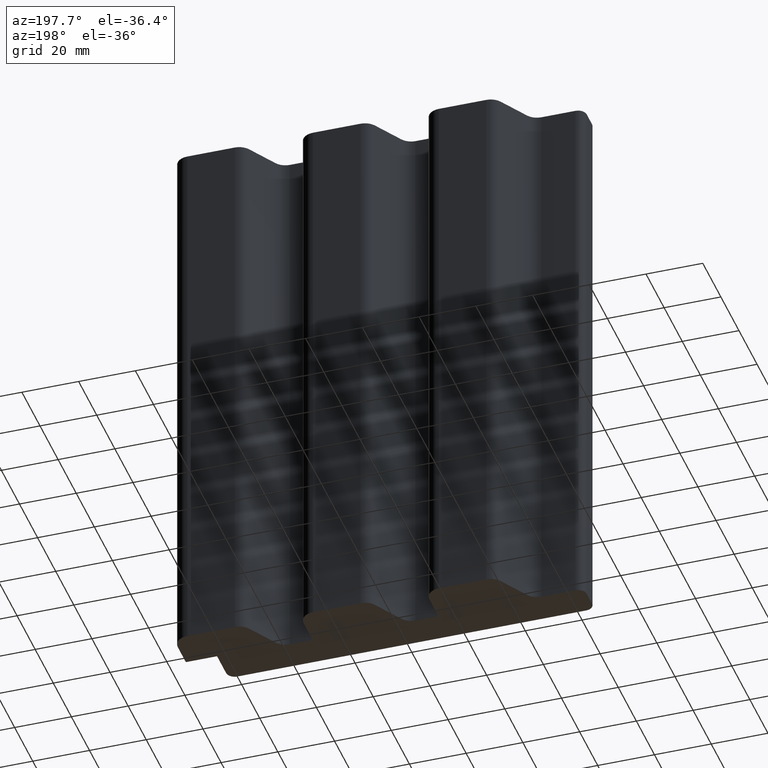
[diagram: clean part render]
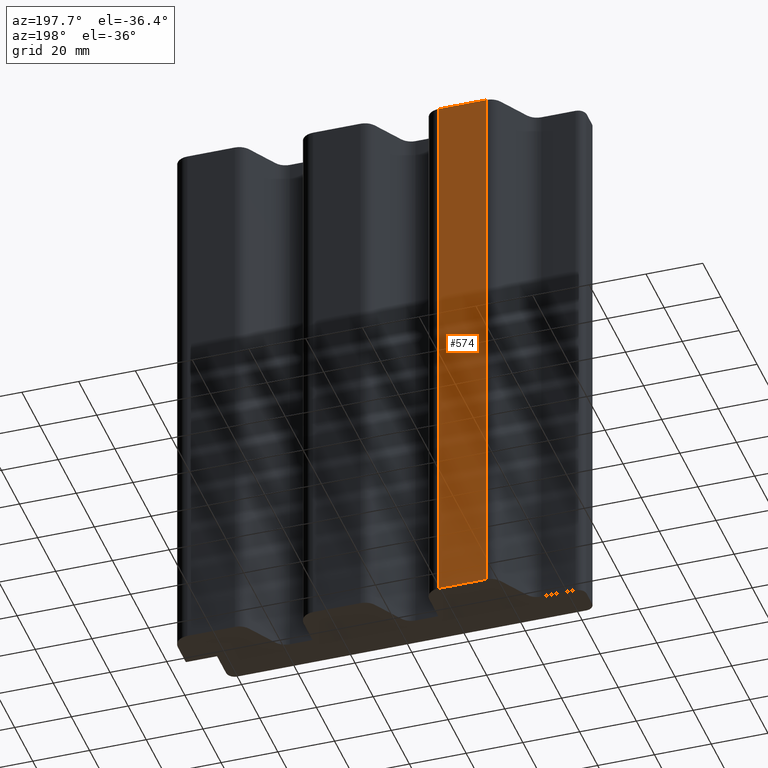
[diagram: same view with one face highlighted and labeled with its STEP entity id]
A machine part, auxiliary view. The second image highlights one B-rep face of the part: STEP entity #574.
In plain terms, the highlighted planar face has unit normal (-0, 1, 0).
Its self-contained STEP definition (entity closure, byte-faithful):
#24=PLANE('',#634);
#50=FACE_OUTER_BOUND('',#80,.T.);
#80=EDGE_LOOP('',(#445,#446,#447,#448));
#128=LINE('',#930,#188);
#129=LINE('',#933,#189);
#130=LINE('',#935,#190);
#131=LINE('',#936,#191);
#188=VECTOR('',#758,10.);
#189=VECTOR('',#761,10.);
#190=VECTOR('',#762,10.);
#191=VECTOR('',#763,10.);
#271=VERTEX_POINT('',#926);
#272=VERTEX_POINT('',#928);
#273=VERTEX_POINT('',#932);
#274=VERTEX_POINT('',#934);
#344=EDGE_CURVE('',#271,#272,#128,.T.);
#345=EDGE_CURVE('',#273,#271,#129,.T.);
#346=EDGE_CURVE('',#274,#272,#130,.T.);
#347=EDGE_CURVE('',#273,#274,#131,.T.);
#445=ORIENTED_EDGE('',*,*,#345,.T.);
#446=ORIENTED_EDGE('',*,*,#344,.T.);
#447=ORIENTED_EDGE('',*,*,#346,.F.);
#448=ORIENTED_EDGE('',*,*,#347,.F.);
#574=ADVANCED_FACE('',(#50),#24,.T.);
#634=AXIS2_PLACEMENT_3D('',#931,#759,#760);
#758=DIRECTION('',(0.,0.,1.));
#759=DIRECTION('center_axis',(-3.12689086083115E-9,1.,0.));
#760=DIRECTION('ref_axis',(-1.,-3.12689086083115E-9,0.));
#761=DIRECTION('',(-1.,-3.12689086083115E-9,0.));
#762=DIRECTION('',(-1.,-3.12689086083115E-9,0.));
#763=DIRECTION('',(0.,0.,1.));
#926=CARTESIAN_POINT('',(-34.8727396283526,26.9999999470069,0.));
#928=CARTESIAN_POINT('',(-34.8727396283526,26.9999999470069,200.));
#930=CARTESIAN_POINT('',(-34.8727396283526,26.9999999470069,0.));
#931=CARTESIAN_POINT('Origin',(-18.1666665576288,26.9999999992449,0.));
#932=CARTESIAN_POINT('',(-18.1666665576288,26.9999999992449,0.));
#933=CARTESIAN_POINT('',(-18.1666665576288,26.9999999992449,0.));
#934=CARTESIAN_POINT('',(-18.1666665576288,26.9999999992449,200.));
#935=CARTESIAN_POINT('',(-18.1666665576288,26.9999999992449,200.));
#936=CARTESIAN_POINT('',(-18.1666665576288,26.9999999992449,0.));